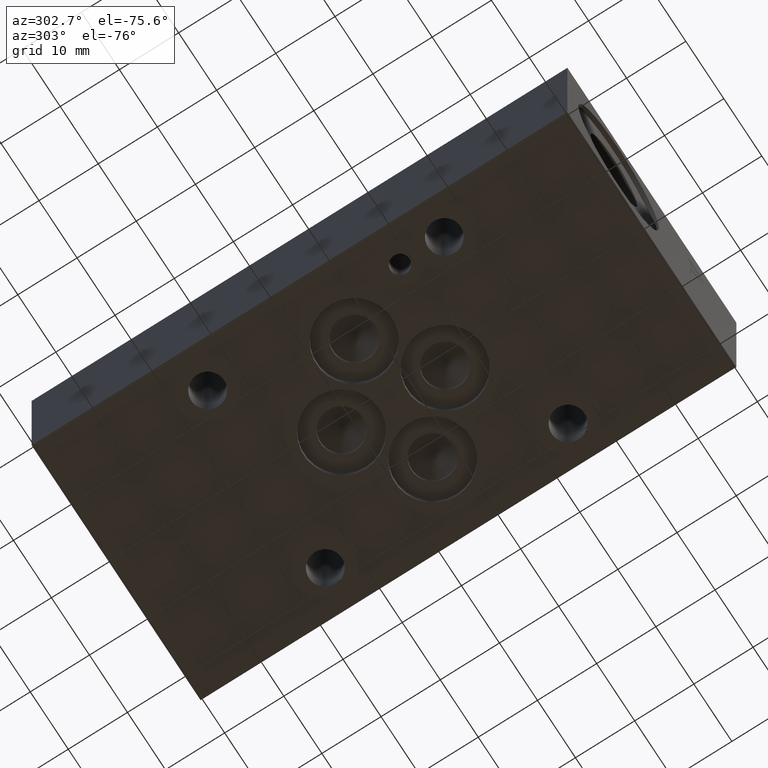
[diagram: clean part render]
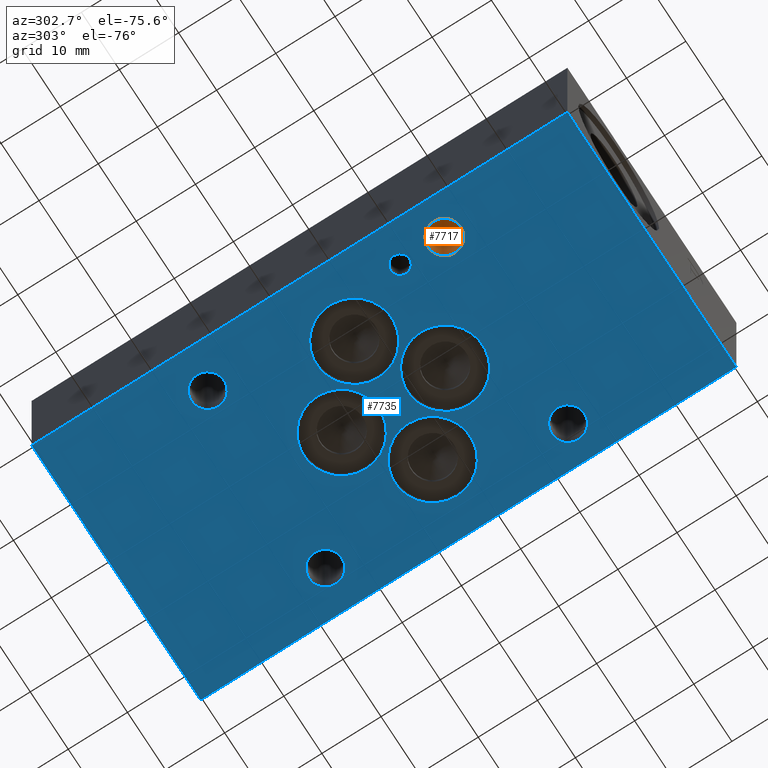
[diagram: same view with the hole feature highlighted: cylindrical wall and planar end face, labeled with their STEP entity ids]
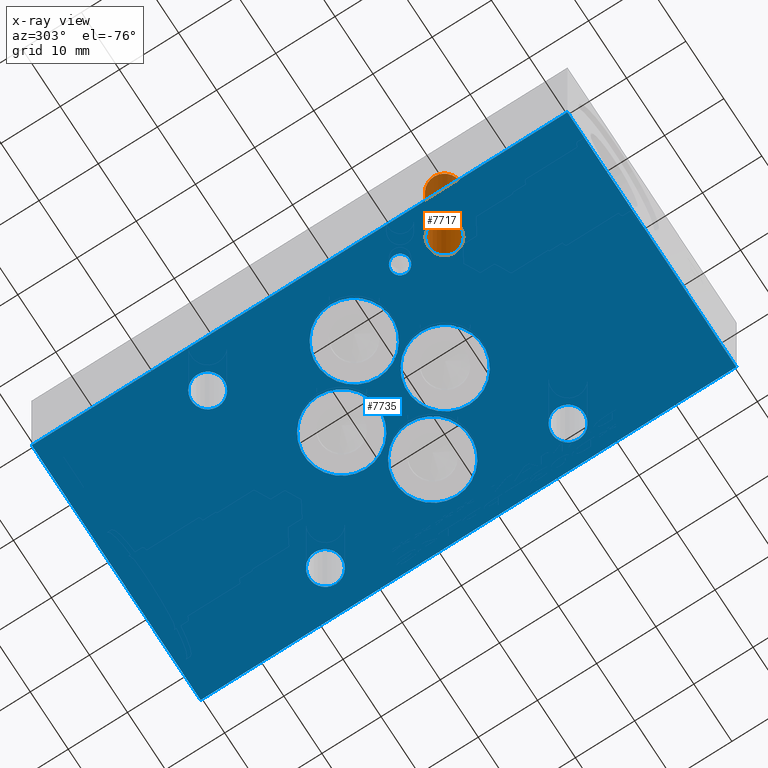
[diagram: x-ray of the same camera — body ghosted, the hole faces saturated]
A machine part, auxiliary view. The highlighted faces form one hole feature of diameter 5.5372 mm: the cylindrical wall (entity #7717, orange) and its adjacent planar end face (entity #7735, blue) — they share a circular edge in the B-rep.
The next image is the same camera in x-ray (body ghosted, the hole faces saturated) — the bore reads through the body.
Wall:
#36=CYLINDRICAL_SURFACE('',#8091,2.7686);
#104=CIRCLE('',#8092,2.7686);
#105=CIRCLE('',#8093,2.7686);
#822=FACE_OUTER_BOUND('',#1262,.T.);
#1262=EDGE_LOOP('',(#6639,#6640,#6641,#6642));
#2091=LINE('',#12880,#2899);
#2899=VECTOR('',#9598,2.7686);
#3590=VERTEX_POINT('',#12877);
#3591=VERTEX_POINT('',#12879);
#4621=EDGE_CURVE('',#3590,#3590,#104,.T.);
#4622=EDGE_CURVE('',#3590,#3591,#2091,.T.);
#4623=EDGE_CURVE('',#3591,#3591,#105,.T.);
#6639=ORIENTED_EDGE('',*,*,#4621,.F.);
#6640=ORIENTED_EDGE('',*,*,#4622,.T.);
#6641=ORIENTED_EDGE('',*,*,#4623,.F.);
#6642=ORIENTED_EDGE('',*,*,#4622,.F.);
#7717=ADVANCED_FACE('',(#822),#36,.F.);
#8091=AXIS2_PLACEMENT_3D('',#12876,#9594,#9595);
#8092=AXIS2_PLACEMENT_3D('',#12878,#9596,#9597);
#8093=AXIS2_PLACEMENT_3D('',#12881,#9599,#9600);
#9594=DIRECTION('center_axis',(0.,0.,1.));
#9595=DIRECTION('ref_axis',(1.,0.,0.));
#9596=DIRECTION('center_axis',(0.,0.,-1.));
#9597=DIRECTION('ref_axis',(1.,0.,0.));
#9598=DIRECTION('',(0.,0.,-1.));
#9599=DIRECTION('center_axis',(0.,0.,1.));
#9600=DIRECTION('ref_axis',(1.,0.,0.));
#12876=CARTESIAN_POINT('Origin',(5.969,24.6126,-78.5771547025596));
#12877=CARTESIAN_POINT('',(3.2004,24.6126,25.4));
#12878=CARTESIAN_POINT('Origin',(5.969,24.6126,25.4));
#12879=CARTESIAN_POINT('',(3.2004,24.6126,0.));
#12880=CARTESIAN_POINT('',(3.2004,24.6126,-78.5771547025596));
#12881=CARTESIAN_POINT('Origin',(5.969,24.6126,0.));
End face:
#69=CIRCLE('',#8022,6.35);
#71=CIRCLE('',#8026,6.35);
#73=CIRCLE('',#8030,6.35);
#75=CIRCLE('',#8034,6.35);
#78=CIRCLE('',#8040,1.5875);
#103=CIRCLE('',#8090,2.7686);
#105=CIRCLE('',#8093,2.7686);
#107=CIRCLE('',#8096,2.7686);
#109=CIRCLE('',#8099,2.7686);
#171=FACE_BOUND('',#1292,.T.);
#172=FACE_BOUND('',#1293,.T.);
#173=FACE_BOUND('',#1294,.T.);
#174=FACE_BOUND('',#1295,.T.);
#175=FACE_BOUND('',#1296,.T.);
#176=FACE_BOUND('',#1297,.T.);
#177=FACE_BOUND('',#1298,.T.);
#178=FACE_BOUND('',#1299,.T.);
#179=FACE_BOUND('',#1300,.T.);
#840=FACE_OUTER_BOUND('',#1291,.T.);
#1291=EDGE_LOOP('',(#6726,#6727,#6728,#6729));
#1292=EDGE_LOOP('',(#6730));
#1293=EDGE_LOOP('',(#6731));
#1294=EDGE_LOOP('',(#6732));
#1295=EDGE_LOOP('',(#6733));
#1296=EDGE_LOOP('',(#6734));
#1297=EDGE_LOOP('',(#6735));
#1298=EDGE_LOOP('',(#6736));
#1299=EDGE_LOOP('',(#6737));
#1300=EDGE_LOOP('',(#6738));
#1618=LINE('',#11537,#2426);
#2055=LINE('',#12701,#2863);
#2104=LINE('',#12941,#2912);
#2107=LINE('',#12946,#2915);
#2426=VECTOR('',#8631,10.);
#2863=VECTOR('',#9384,10.);
#2912=VECTOR('',#9667,10.);
#2915=VECTOR('',#9672,10.);
#3223=VERTEX_POINT('',#11535);
#3224=VERTEX_POINT('',#11536);
#3537=VERTEX_POINT('',#12700);
#3552=VERTEX_POINT('',#12744);
#3554=VERTEX_POINT('',#12751);
#3556=VERTEX_POINT('',#12758);
#3558=VERTEX_POINT('',#12765);
#3562=VERTEX_POINT('',#12777);
#3589=VERTEX_POINT('',#12873);
#3591=VERTEX_POINT('',#12879);
#3593=VERTEX_POINT('',#12885);
#3595=VERTEX_POINT('',#12891);
#3611=VERTEX_POINT('',#12940);
#4072=EDGE_CURVE('',#3223,#3224,#1618,.T.);
#4541=EDGE_CURVE('',#3537,#3223,#2055,.T.);
#4561=EDGE_CURVE('',#3552,#3552,#69,.T.);
#4564=EDGE_CURVE('',#3554,#3554,#71,.T.);
#4567=EDGE_CURVE('',#3556,#3556,#73,.T.);
#4570=EDGE_CURVE('',#3558,#3558,#75,.T.);
#4575=EDGE_CURVE('',#3562,#3562,#78,.T.);
#4620=EDGE_CURVE('',#3589,#3589,#103,.T.);
#4623=EDGE_CURVE('',#3591,#3591,#105,.T.);
#4626=EDGE_CURVE('',#3593,#3593,#107,.T.);
#4629=EDGE_CURVE('',#3595,#3595,#109,.T.);
#4650=EDGE_CURVE('',#3611,#3537,#2104,.T.);
#4653=EDGE_CURVE('',#3224,#3611,#2107,.T.);
#6726=ORIENTED_EDGE('',*,*,#4541,.F.);
#6727=ORIENTED_EDGE('',*,*,#4650,.F.);
#6728=ORIENTED_EDGE('',*,*,#4653,.F.);
#6729=ORIENTED_EDGE('',*,*,#4072,.F.);
#6730=ORIENTED_EDGE('',*,*,#4561,.T.);
#6731=ORIENTED_EDGE('',*,*,#4564,.T.);
#6732=ORIENTED_EDGE('',*,*,#4567,.T.);
#6733=ORIENTED_EDGE('',*,*,#4570,.T.);
#6734=ORIENTED_EDGE('',*,*,#4575,.T.);
#6735=ORIENTED_EDGE('',*,*,#4620,.T.);
#6736=ORIENTED_EDGE('',*,*,#4623,.T.);
#6737=ORIENTED_EDGE('',*,*,#4626,.T.);
#6738=ORIENTED_EDGE('',*,*,#4629,.T.);
#7005=PLANE('',#8125);
#7735=ADVANCED_FACE('',(#840,#171,#172,#173,#174,#175,#176,#177,#178,#179),
#7005,.F.);
#8022=AXIS2_PLACEMENT_3D('',#12745,#9431,#9432);
#8026=AXIS2_PLACEMENT_3D('',#12752,#9440,#9441);
#8030=AXIS2_PLACEMENT_3D('',#12759,#9449,#9450);
#8034=AXIS2_PLACEMENT_3D('',#12766,#9458,#9459);
#8040=AXIS2_PLACEMENT_3D('',#12778,#9472,#9473);
#8090=AXIS2_PLACEMENT_3D('',#12875,#9592,#9593);
#8093=AXIS2_PLACEMENT_3D('',#12881,#9599,#9600);
#8096=AXIS2_PLACEMENT_3D('',#12887,#9606,#9607);
#8099=AXIS2_PLACEMENT_3D('',#12893,#9613,#9614);
#8125=AXIS2_PLACEMENT_3D('',#12951,#9680,#9681);
#8631=DIRECTION('',(0.,1.,0.));
#9384=DIRECTION('',(1.,0.,0.));
#9431=DIRECTION('center_axis',(0.,0.,1.));
#9432=DIRECTION('ref_axis',(1.,0.,0.));
#9440=DIRECTION('center_axis',(0.,0.,1.));
#9441=DIRECTION('ref_axis',(1.,0.,0.));
#9449=DIRECTION('center_axis',(0.,0.,1.));
#9450=DIRECTION('ref_axis',(1.,0.,0.));
#9458=DIRECTION('center_axis',(0.,0.,1.));
#9459=DIRECTION('ref_axis',(1.,0.,0.));
#9472=DIRECTION('center_axis',(0.,0.,1.));
#9473=DIRECTION('ref_axis',(1.,0.,0.));
#9592=DIRECTION('center_axis',(0.,0.,1.));
#9593=DIRECTION('ref_axis',(1.,0.,0.));
#9599=DIRECTION('center_axis',(0.,0.,1.));
#9600=DIRECTION('ref_axis',(1.,0.,0.));
#9606=DIRECTION('center_axis',(0.,0.,1.));
#9607=DIRECTION('ref_axis',(1.,0.,0.));
#9613=DIRECTION('center_axis',(0.,0.,1.));
#9614=DIRECTION('ref_axis',(1.,0.,0.));
#9667=DIRECTION('',(0.,-1.,0.));
#9672=DIRECTION('',(-1.,0.,0.));
#9680=DIRECTION('center_axis',(0.,0.,1.));
#9681=DIRECTION('ref_axis',(1.,0.,0.));
#11535=CARTESIAN_POINT('',(44.45,0.,0.));
#11536=CARTESIAN_POINT('',(44.45,90.5002,0.));
#11537=CARTESIAN_POINT('',(44.45,0.,0.));
#12700=CARTESIAN_POINT('',(0.,0.,0.));
#12701=CARTESIAN_POINT('',(0.,0.,0.));
#12744=CARTESIAN_POINT('',(15.875,52.4002,0.));
#12745=CARTESIAN_POINT('Origin',(22.225,52.4002,0.));
#12751=CARTESIAN_POINT('',(5.5626,43.6626,0.));
#12752=CARTESIAN_POINT('Origin',(11.9126,43.6626,0.));
#12758=CARTESIAN_POINT('',(26.2128,43.6626,0.));
#12759=CARTESIAN_POINT('Origin',(32.5628,43.6626,0.));
#12765=CARTESIAN_POINT('',(15.875,34.925,0.));
#12766=CARTESIAN_POINT('Origin',(22.225,34.925,0.));
#12777=CARTESIAN_POINT('',(4.3815,32.1056,0.));
#12778=CARTESIAN_POINT('Origin',(5.969,32.1056,0.));
#12873=CARTESIAN_POINT('',(3.9878,65.1002,0.));
#12875=CARTESIAN_POINT('Origin',(6.7564,65.1002,0.));
#12879=CARTESIAN_POINT('',(3.2004,24.6126,0.));
#12881=CARTESIAN_POINT('Origin',(5.969,24.6126,0.));
#12885=CARTESIAN_POINT('',(35.7378,24.6126,0.));
#12887=CARTESIAN_POINT('Origin',(38.5064,24.6126,0.));
#12891=CARTESIAN_POINT('',(34.9504,65.1002,0.));
#12893=CARTESIAN_POINT('Origin',(37.719,65.1002,0.));
#12940=CARTESIAN_POINT('',(0.,90.5002,0.));
#12941=CARTESIAN_POINT('',(0.,90.5002,0.));
#12946=CARTESIAN_POINT('',(44.45,90.5002,0.));
#12951=CARTESIAN_POINT('Origin',(22.225,45.2501,0.));